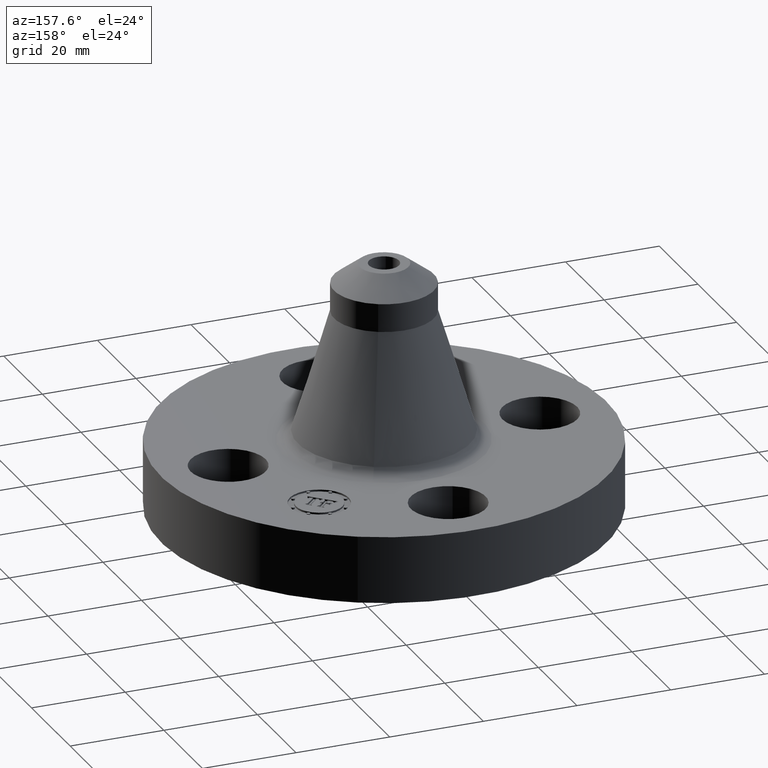
[diagram: clean part render]
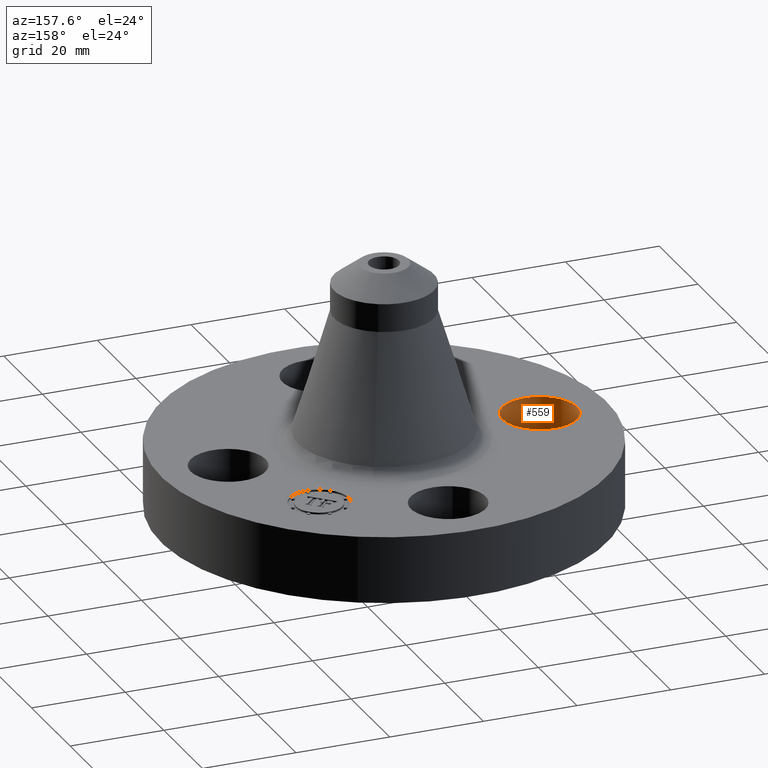
[diagram: same view with one face highlighted and labeled with its STEP entity id]
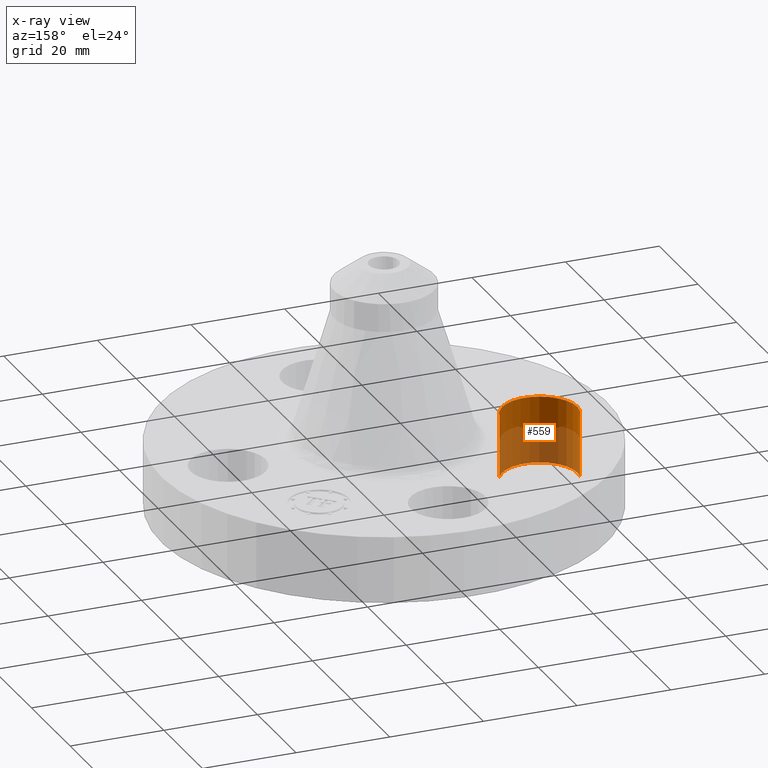
[diagram: x-ray of the same camera — body ghosted, the highlighted face saturated]
A machine part, auxiliary view. The second image highlights one B-rep face of the part: STEP entity #559.
The next image is the same camera in x-ray: the body ghosted, the highlighted face saturated — about 55% of this face is hidden behind the body in this view.
In plain terms, the highlighted cylindrical surface (partial cylindrical patch) has radius 8.001 mm, axis along (0, 0, -1).
Its self-contained STEP definition (entity closure, byte-faithful):
#201=AXIS2_PLACEMENT_3D('Circle Axis2P3D',#199,#200,$) ;
#317=AXIS2_PLACEMENT_3D('Circle Axis2P3D',#315,#316,$) ;
#541=AXIS2_PLACEMENT_3D('Cylinder Axis2P3D',#538,#539,#540) ;
#199=CARTESIAN_POINT('Axis2P3D Location',(-1.31000000001,-1.62477205793E-011,0.)) ;
#203=CARTESIAN_POINT('Vertex',(-1.03356149304,-0.151019044691,0.)) ;
#205=CARTESIAN_POINT('Vertex',(-1.58643850697,0.151019044659,0.)) ;
#310=CARTESIAN_POINT('Vertex',(-1.58643850697,0.151019044685,0.560000000002)) ;
#312=CARTESIAN_POINT('Vertex',(-1.03356149301,-0.151019044661,0.559999999987)) ;
#315=CARTESIAN_POINT('Axis2P3D Location',(-1.31000000004,-4.64767681908E-011,0.560000000002)) ;
#538=CARTESIAN_POINT('Axis2P3D Location',(-1.31000000001,-1.60428730689E-016,0.556062992128)) ;
#543=CARTESIAN_POINT('Line Origine',(-1.03356149301,-0.151019044661,0.280000000001)) ;
#548=CARTESIAN_POINT('Line Origine',(-1.58643850701,0.151019044661,0.280000000001)) ;
#200=DIRECTION('Axis2P3D Direction',(0.,0.,-0.0393700787402)) ;
#316=DIRECTION('Axis2P3D Direction',(0.,0.,-0.0393700787402)) ;
#539=DIRECTION('Axis2P3D Direction',(0.,0.,-0.0393700787402)) ;
#540=DIRECTION('Axis2P3D XDirection',(0.0345504945626,-0.0188750212049,0.)) ;
#544=DIRECTION('Vector Direction',(0.,0.,-0.0393700787402)) ;
#549=DIRECTION('Vector Direction',(0.,0.,-0.0393700787402)) ;
#545=VECTOR('Line Direction',#544,0.0393700787402) ;
#550=VECTOR('Line Direction',#549,0.0393700787402) ;
#554=ORIENTED_EDGE('',*,*,#547,.F.) ;
#555=ORIENTED_EDGE('',*,*,#207,.T.) ;
#556=ORIENTED_EDGE('',*,*,#552,.T.) ;
#557=ORIENTED_EDGE('',*,*,#319,.F.) ;
#559=ADVANCED_FACE('PartBody',(#558),#542,.F.) ;
#202=CIRCLE('generated circle',#201,0.314999999981) ;
#318=CIRCLE('generated circle',#317,0.314999999981) ;
#542=CYLINDRICAL_SURFACE('generated cylinder',#541,0.315000000001) ;
#207=EDGE_CURVE('',#204,#206,#202,.T.) ;
#319=EDGE_CURVE('',#313,#311,#318,.T.) ;
#547=EDGE_CURVE('',#204,#313,#546,.F.) ;
#552=EDGE_CURVE('',#206,#311,#551,.F.) ;
#553=EDGE_LOOP('',(#554,#555,#556,#557)) ;
#558=FACE_OUTER_BOUND('',#553,.T.) ;
#546=LINE('Line',#543,#545) ;
#551=LINE('Line',#548,#550) ;
#204=VERTEX_POINT('',#203) ;
#206=VERTEX_POINT('',#205) ;
#311=VERTEX_POINT('',#310) ;
#313=VERTEX_POINT('',#312) ;